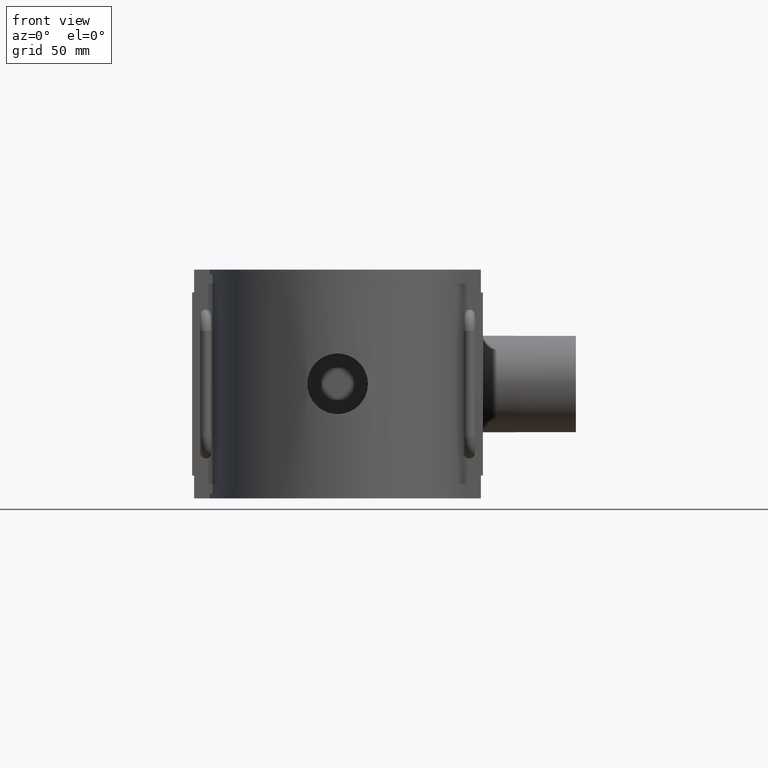
[diagram: clean part render]
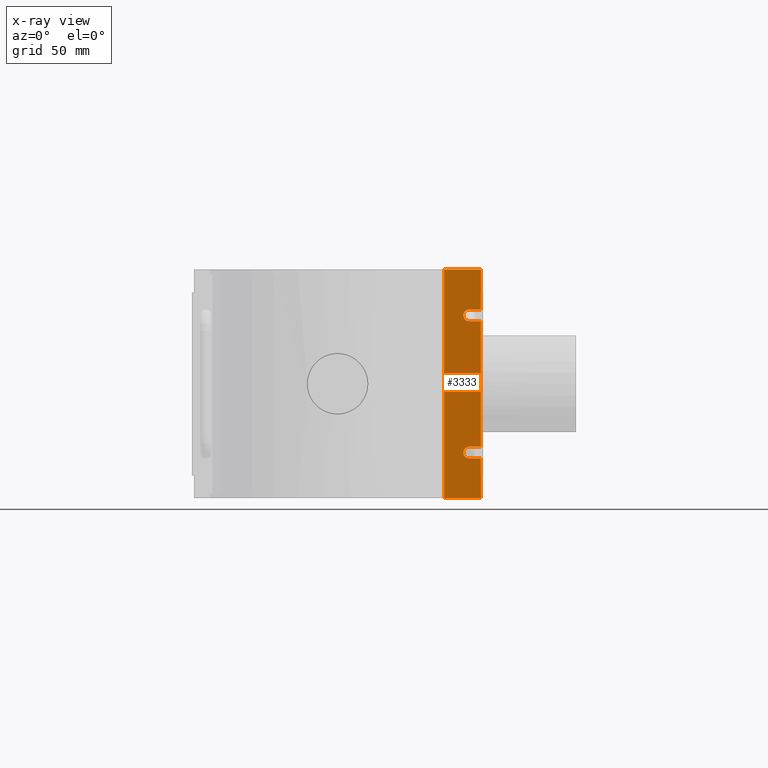
[diagram: x-ray — body ghosted, one internal face saturated and labeled with its STEP entity id]
A machine part, front view, then the same camera in x-ray: the body is ghosted and one INTERNAL B-rep face — a face not visible from any outside direction — is saturated and labeled: STEP entity #3333.
In plain terms, the highlighted planar face has unit normal (0, -1, 0).
Its self-contained STEP definition (entity closure, byte-faithful):
#292=LINE('',#6704,#579);
#294=LINE('',#6711,#581);
#299=LINE('',#6722,#586);
#300=LINE('',#6725,#587);
#302=LINE('',#6727,#589);
#303=LINE('',#6729,#590);
#305=LINE('',#6732,#592);
#306=LINE('',#6735,#593);
#309=LINE('',#6740,#596);
#310=LINE('',#6742,#597);
#311=LINE('',#6744,#598);
#312=LINE('',#6746,#599);
#313=LINE('',#6748,#600);
#314=LINE('',#6749,#601);
#579=VECTOR('',#4481,0.0243346729777727);
#581=VECTOR('',#4489,0.0243346729777727);
#586=VECTOR('',#4500,6.);
#587=VECTOR('',#4503,6.);
#589=VECTOR('',#4505,0.0243346729777727);
#590=VECTOR('',#4508,0.0243346729777727);
#592=VECTOR('',#4510,6.);
#593=VECTOR('',#4513,6.);
#596=VECTOR('',#4518,64.8);
#597=VECTOR('',#4519,20.6);
#598=VECTOR('',#4520,19.0000227272774);
#599=VECTOR('',#4521,118.);
#600=VECTOR('',#4522,19.0000227272774);
#601=VECTOR('',#4523,20.6);
#953=FACE_OUTER_BOUND('',#1199,.T.);
#1199=EDGE_LOOP('',(#2926,#2927,#2928,#2929,#2930,#2931,#2932,#2933,#2934,
#2935,#2936,#2937,#2938,#2939,#2940,#2941));
#1328=CIRCLE('',#3634,3.);
#1329=CIRCLE('',#3637,3.);
#1619=VERTEX_POINT('',#6687);
#1620=VERTEX_POINT('',#6689);
#1622=VERTEX_POINT('',#6694);
#1623=VERTEX_POINT('',#6696);
#1625=VERTEX_POINT('',#6702);
#1626=VERTEX_POINT('',#6706);
#1627=VERTEX_POINT('',#6710);
#1628=VERTEX_POINT('',#6714);
#1630=VERTEX_POINT('',#6720);
#1631=VERTEX_POINT('',#6724);
#1632=VERTEX_POINT('',#6730);
#1633=VERTEX_POINT('',#6734);
#1635=VERTEX_POINT('',#6741);
#1636=VERTEX_POINT('',#6743);
#1637=VERTEX_POINT('',#6745);
#1638=VERTEX_POINT('',#6747);
#2061=EDGE_CURVE('',#1620,#1625,#292,.T.);
#2063=EDGE_CURVE('',#1625,#1626,#1328,.T.);
#2064=EDGE_CURVE('',#1627,#1622,#294,.T.);
#2066=EDGE_CURVE('',#1628,#1627,#1329,.T.);
#2070=EDGE_CURVE('',#1622,#1630,#299,.T.);
#2071=EDGE_CURVE('',#1631,#1623,#300,.T.);
#2073=EDGE_CURVE('',#1623,#1628,#302,.T.);
#2074=EDGE_CURVE('',#1626,#1619,#303,.T.);
#2076=EDGE_CURVE('',#1619,#1632,#305,.T.);
#2077=EDGE_CURVE('',#1633,#1620,#306,.T.);
#2080=EDGE_CURVE('',#1633,#1630,#309,.T.);
#2081=EDGE_CURVE('',#1635,#1632,#310,.T.);
#2082=EDGE_CURVE('',#1636,#1635,#311,.T.);
#2083=EDGE_CURVE('',#1637,#1636,#312,.T.);
#2084=EDGE_CURVE('',#1638,#1637,#313,.T.);
#2085=EDGE_CURVE('',#1631,#1638,#314,.T.);
#2926=ORIENTED_EDGE('',*,*,#2064,.T.);
#2927=ORIENTED_EDGE('',*,*,#2070,.T.);
#2928=ORIENTED_EDGE('',*,*,#2080,.F.);
#2929=ORIENTED_EDGE('',*,*,#2077,.T.);
#2930=ORIENTED_EDGE('',*,*,#2061,.T.);
#2931=ORIENTED_EDGE('',*,*,#2063,.T.);
#2932=ORIENTED_EDGE('',*,*,#2074,.T.);
#2933=ORIENTED_EDGE('',*,*,#2076,.T.);
#2934=ORIENTED_EDGE('',*,*,#2081,.F.);
#2935=ORIENTED_EDGE('',*,*,#2082,.F.);
#2936=ORIENTED_EDGE('',*,*,#2083,.F.);
#2937=ORIENTED_EDGE('',*,*,#2084,.F.);
#2938=ORIENTED_EDGE('',*,*,#2085,.F.);
#2939=ORIENTED_EDGE('',*,*,#2071,.T.);
#2940=ORIENTED_EDGE('',*,*,#2073,.T.);
#2941=ORIENTED_EDGE('',*,*,#2066,.T.);
#3143=PLANE('',#3642);
#3333=ADVANCED_FACE('',(#953),#3143,.F.);
#3634=AXIS2_PLACEMENT_3D('',#6708,#4485,#4486);
#3637=AXIS2_PLACEMENT_3D('',#6715,#4493,#4494);
#3642=AXIS2_PLACEMENT_3D('',#6739,#4516,#4517);
#4481=DIRECTION('',(-1.,-5.27449705533489E-17,0.));
#4485=DIRECTION('center_axis',(5.27449705533489E-17,-1.,0.));
#4486=DIRECTION('ref_axis',(1.,0.,0.));
#4489=DIRECTION('',(1.,5.27449705533489E-17,0.));
#4493=DIRECTION('center_axis',(5.27449705533489E-17,-1.,0.));
#4494=DIRECTION('ref_axis',(1.,0.,0.));
#4500=DIRECTION('',(1.,5.27449705533488E-17,0.));
#4503=DIRECTION('',(-1.,-5.27449705533488E-17,-7.37158929503087E-16));
#4505=DIRECTION('',(-1.,-5.27449705533489E-17,-7.37158929503087E-16));
#4508=DIRECTION('',(1.,5.27449705533489E-17,0.));
#4510=DIRECTION('',(1.,5.27449705533488E-17,0.));
#4513=DIRECTION('',(-1.,-5.27449705533488E-17,0.));
#4516=DIRECTION('center_axis',(5.27449705533489E-17,-1.,0.));
#4517=DIRECTION('ref_axis',(1.,5.27355936696949E-17,0.));
#4518=DIRECTION('',(0.,0.,1.));
#4519=DIRECTION('',(0.,0.,1.));
#4520=DIRECTION('',(1.,5.27449705533489E-17,0.));
#4521=DIRECTION('',(0.,0.,-1.));
#4522=DIRECTION('',(-1.,-5.27449705533489E-17,0.));
#4523=DIRECTION('',(0.,0.,1.));
#6687=CARTESIAN_POINT('',(68.,-0.0499999999999989,-38.4));
#6689=CARTESIAN_POINT('',(68.,-0.0500000000000012,-32.4));
#6694=CARTESIAN_POINT('',(68.,-0.0499999999999989,32.4));
#6696=CARTESIAN_POINT('',(68.,-0.0499999999999989,38.4));
#6702=CARTESIAN_POINT('',(67.9756653270222,-0.0500000000000012,-32.4));
#6704=CARTESIAN_POINT('',(-3.0121673364889,-0.0500000000000045,-32.4));
#6706=CARTESIAN_POINT('',(67.9756653270222,-0.0500000000000012,-38.4));
#6708=CARTESIAN_POINT('Origin',(67.9756653270222,-0.0500000000000078,-35.4));
#6710=CARTESIAN_POINT('',(67.9756653270222,-0.0500000000000012,32.4));
#6711=CARTESIAN_POINT('',(-1.81248714422929E-14,-0.0500000000000034,32.4));
#6714=CARTESIAN_POINT('',(67.9756653270222,-0.0500000000000012,38.4));
#6715=CARTESIAN_POINT('Origin',(67.9756653270222,-0.0500000000000078,35.4));
#6720=CARTESIAN_POINT('',(74.,-0.0499999999999995,32.4));
#6722=CARTESIAN_POINT('',(-1.81248714422929E-14,-0.0500000000000034,32.4));
#6724=CARTESIAN_POINT('',(74.,-0.0499999999999989,38.4));
#6725=CARTESIAN_POINT('',(-3.01216733648894,-0.0500000000000045,38.3999999999999));
#6727=CARTESIAN_POINT('',(-3.01216733648894,-0.0500000000000045,38.3999999999999));
#6729=CARTESIAN_POINT('',(-1.81248714422929E-14,-0.0500000000000034,-38.4));
#6730=CARTESIAN_POINT('',(74.,-0.0499999999999995,-38.4));
#6732=CARTESIAN_POINT('',(-1.81248714422929E-14,-0.0500000000000034,-38.4));
#6734=CARTESIAN_POINT('',(74.,-0.0499999999999995,-32.4));
#6735=CARTESIAN_POINT('',(-3.0121673364889,-0.0500000000000045,-32.4));
#6739=CARTESIAN_POINT('Origin',(-74.,-0.0500000000000078,-59.));
#6740=CARTESIAN_POINT('',(74.,-0.0499999999999995,-29.5));
#6741=CARTESIAN_POINT('',(74.,-0.05,-59.));
#6742=CARTESIAN_POINT('',(74.,-0.0499999999999995,-29.5));
#6743=CARTESIAN_POINT('',(54.9999772727226,-0.050000000000001,-59.));
#6744=CARTESIAN_POINT('',(-72.0235519553924,-0.0500000000000077,-59.));
#6745=CARTESIAN_POINT('',(54.9999772727226,-0.050000000000001,59.));
#6746=CARTESIAN_POINT('',(54.9999772727226,-0.050000000000001,0.));
#6747=CARTESIAN_POINT('',(74.,-0.05,59.));
#6748=CARTESIAN_POINT('',(-72.0235519553924,-0.0500000000000077,59.));
#6749=CARTESIAN_POINT('',(74.,-0.0499999999999995,-29.5));